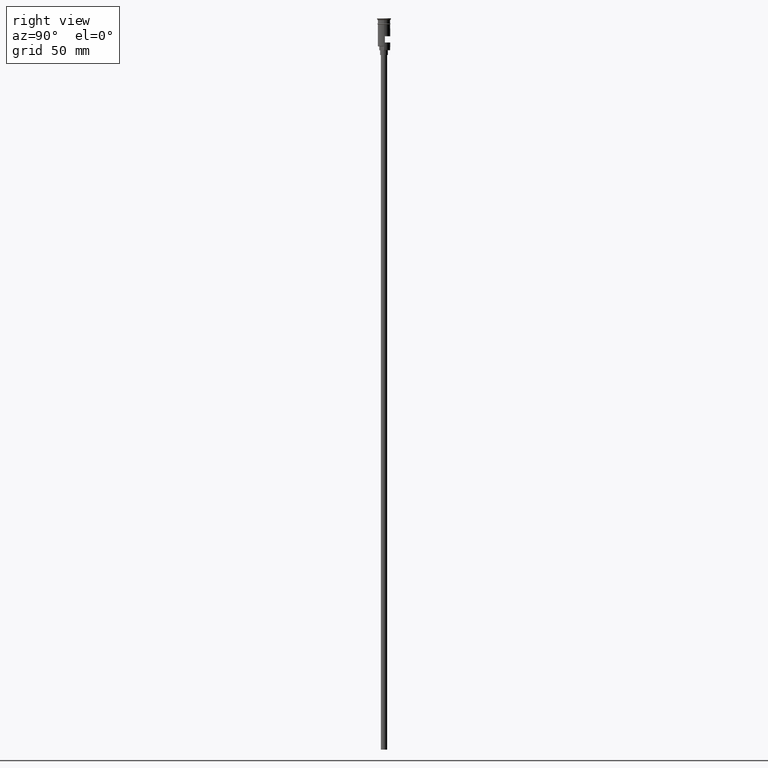
[diagram: clean part render]
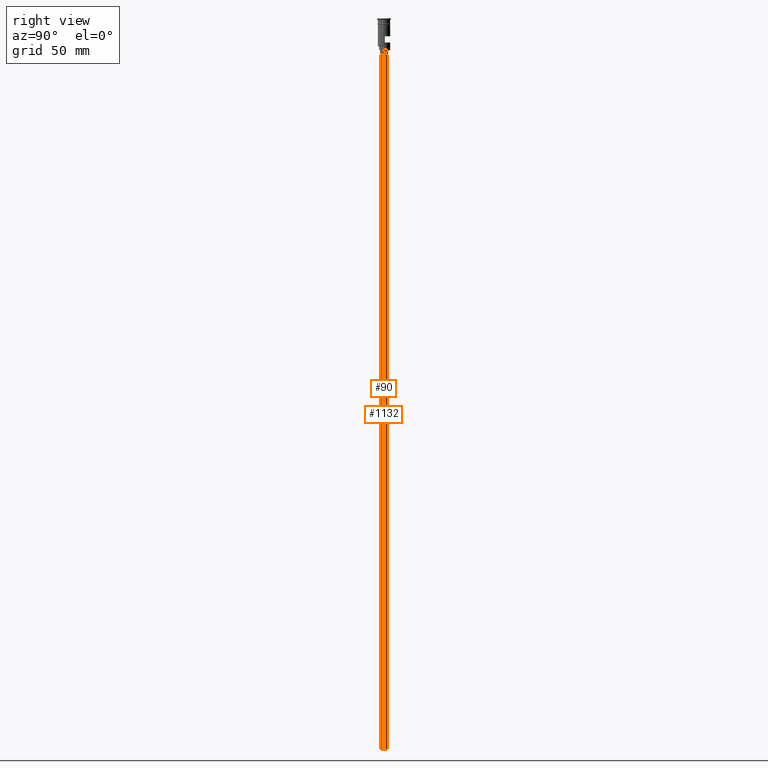
[diagram: same view with one multi-face feature highlighted, each face labeled with its STEP entity id]
A machine part, right view. The highlighted faces form ONE feature: a constant-radius fillet chain: 2 tangent blend faces with common blend radius 2 mm. The faces share edges in the B-rep.
Their STEP definitions:
[1] entity #1132 (Cylinder):
#51 = CYLINDRICAL_SURFACE ( 'NONE', #353, 2.000000000000000000 ) ;
#58 = FACE_OUTER_BOUND ( 'NONE', #765, .T. ) ;
#163 = CARTESIAN_POINT ( 'NONE',  ( -2.000000000000000000, 2.449293598294706414E-16, -470.5000000000000568 ) ) ;
#185 = VERTEX_POINT ( 'NONE', #838 ) ;
#198 = LINE ( 'NONE', #311, #1436 ) ;
#230 = VECTOR ( 'NONE', #646, 1000.000000000000000 ) ;
#258 = ORIENTED_EDGE ( 'NONE', *, *, #1176, .T. ) ;
#311 = CARTESIAN_POINT ( 'NONE',  ( 2.000000000000000000, 0.000000000000000000, -470.5000000000000568 ) ) ;
#353 = AXIS2_PLACEMENT_3D ( 'NONE', #1014, #1520, #1402 ) ;
#381 = AXIS2_PLACEMENT_3D ( 'NONE', #1517, #620, #995 ) ;
#387 = VERTEX_POINT ( 'NONE', #899 ) ;
#414 = VERTEX_POINT ( 'NONE', #1516 ) ;
#425 = CARTESIAN_POINT ( 'NONE',  ( -2.000000000000000000, 2.449293598294706414E-16, -470.5000000000000568 ) ) ;
#474 = CARTESIAN_POINT ( 'NONE',  ( 0.000000000000000000, 0.000000000000000000, -23.49999999999999645 ) ) ;
#547 = DIRECTION ( 'NONE',  ( -0.000000000000000000, -0.000000000000000000, 1.000000000000000000 ) ) ;
#620 = DIRECTION ( 'NONE',  ( 0.000000000000000000, 0.000000000000000000, -1.000000000000000000 ) ) ;
#622 = EDGE_CURVE ( 'NONE', #414, #797, #1389, .T. ) ;
#646 = DIRECTION ( 'NONE',  ( -0.000000000000000000, -0.000000000000000000, 1.000000000000000000 ) ) ;
#680 = AXIS2_PLACEMENT_3D ( 'NONE', #474, #1490, #842 ) ;
#765 = EDGE_LOOP ( 'NONE', ( #866, #1401, #1127, #258 ) ) ;
#797 = VERTEX_POINT ( 'NONE', #425 ) ;
#838 = CARTESIAN_POINT ( 'NONE',  ( -2.000000000000000000, 2.449293598294706414E-16, -23.49999999999999645 ) ) ;
#842 = DIRECTION ( 'NONE',  ( -1.000000000000000000, 0.000000000000000000, 0.000000000000000000 ) ) ;
#866 = ORIENTED_EDGE ( 'NONE', *, *, #1283, .F. ) ;
#899 = CARTESIAN_POINT ( 'NONE',  ( 2.000000000000000000, 0.000000000000000000, -23.49999999999999645 ) ) ;
#995 = DIRECTION ( 'NONE',  ( -1.000000000000000000, 0.000000000000000000, 0.000000000000000000 ) ) ;
#1014 = CARTESIAN_POINT ( 'NONE',  ( 0.000000000000000000, 0.000000000000000000, -470.5000000000000568 ) ) ;
#1127 = ORIENTED_EDGE ( 'NONE', *, *, #1474, .T. ) ;
#1132 = ADVANCED_FACE ( 'NONE', ( #58 ), #51, .T. ) ;
#1176 = EDGE_CURVE ( 'NONE', #387, #185, #1536, .T. ) ;
#1283 = EDGE_CURVE ( 'NONE', #797, #185, #1509, .T. ) ;
#1389 = CIRCLE ( 'NONE', #381, 2.000000000000000000 ) ;
#1401 = ORIENTED_EDGE ( 'NONE', *, *, #622, .F. ) ;
#1402 = DIRECTION ( 'NONE',  ( 1.000000000000000000, 0.000000000000000000, 0.000000000000000000 ) ) ;
#1436 = VECTOR ( 'NONE', #547, 1000.000000000000000 ) ;
#1474 = EDGE_CURVE ( 'NONE', #414, #387, #198, .T. ) ;
#1490 = DIRECTION ( 'NONE',  ( 0.000000000000000000, 0.000000000000000000, -1.000000000000000000 ) ) ;
#1509 = LINE ( 'NONE', #163, #230 ) ;
#1516 = CARTESIAN_POINT ( 'NONE',  ( 2.000000000000000000, 0.000000000000000000, -470.5000000000000568 ) ) ;
#1517 = CARTESIAN_POINT ( 'NONE',  ( 0.000000000000000000, 0.000000000000000000, -470.5000000000000568 ) ) ;
#1520 = DIRECTION ( 'NONE',  ( -0.000000000000000000, -0.000000000000000000, 1.000000000000000000 ) ) ;
#1536 = CIRCLE ( 'NONE', #680, 2.000000000000000000 ) ;
[2] entity #90 (Cylinder):
#90 = ADVANCED_FACE ( 'NONE', ( #971 ), #482, .T. ) ;
#128 = ORIENTED_EDGE ( 'NONE', *, *, #1185, .T. ) ;
#163 = CARTESIAN_POINT ( 'NONE',  ( -2.000000000000000000, 2.449293598294706414E-16, -470.5000000000000568 ) ) ;
#185 = VERTEX_POINT ( 'NONE', #838 ) ;
#198 = LINE ( 'NONE', #311, #1436 ) ;
#230 = VECTOR ( 'NONE', #646, 1000.000000000000000 ) ;
#298 = ORIENTED_EDGE ( 'NONE', *, *, #1474, .F. ) ;
#311 = CARTESIAN_POINT ( 'NONE',  ( 2.000000000000000000, 0.000000000000000000, -470.5000000000000568 ) ) ;
#365 = DIRECTION ( 'NONE',  ( -0.000000000000000000, -0.000000000000000000, 1.000000000000000000 ) ) ;
#367 = ORIENTED_EDGE ( 'NONE', *, *, #1283, .T. ) ;
#387 = VERTEX_POINT ( 'NONE', #899 ) ;
#414 = VERTEX_POINT ( 'NONE', #1516 ) ;
#420 = CIRCLE ( 'NONE', #980, 2.000000000000000000 ) ;
#425 = CARTESIAN_POINT ( 'NONE',  ( -2.000000000000000000, 2.449293598294706414E-16, -470.5000000000000568 ) ) ;
#460 = DIRECTION ( 'NONE',  ( 0.000000000000000000, 0.000000000000000000, -1.000000000000000000 ) ) ;
#482 = CYLINDRICAL_SURFACE ( 'NONE', #681, 2.000000000000000000 ) ;
#507 = CARTESIAN_POINT ( 'NONE',  ( 0.000000000000000000, 0.000000000000000000, -23.49999999999999645 ) ) ;
#547 = DIRECTION ( 'NONE',  ( -0.000000000000000000, -0.000000000000000000, 1.000000000000000000 ) ) ;
#555 = AXIS2_PLACEMENT_3D ( 'NONE', #507, #623, #1335 ) ;
#623 = DIRECTION ( 'NONE',  ( 0.000000000000000000, 0.000000000000000000, -1.000000000000000000 ) ) ;
#646 = DIRECTION ( 'NONE',  ( -0.000000000000000000, -0.000000000000000000, 1.000000000000000000 ) ) ;
#681 = AXIS2_PLACEMENT_3D ( 'NONE', #1471, #365, #846 ) ;
#797 = VERTEX_POINT ( 'NONE', #425 ) ;
#838 = CARTESIAN_POINT ( 'NONE',  ( -2.000000000000000000, 2.449293598294706414E-16, -23.49999999999999645 ) ) ;
#846 = DIRECTION ( 'NONE',  ( 1.000000000000000000, 0.000000000000000000, 0.000000000000000000 ) ) ;
#899 = CARTESIAN_POINT ( 'NONE',  ( 2.000000000000000000, 0.000000000000000000, -23.49999999999999645 ) ) ;
#971 = FACE_OUTER_BOUND ( 'NONE', #1318, .T. ) ;
#980 = AXIS2_PLACEMENT_3D ( 'NONE', #1161, #460, #1199 ) ;
#1032 = CIRCLE ( 'NONE', #555, 2.000000000000000000 ) ;
#1146 = EDGE_CURVE ( 'NONE', #797, #414, #420, .T. ) ;
#1161 = CARTESIAN_POINT ( 'NONE',  ( 0.000000000000000000, 0.000000000000000000, -470.5000000000000568 ) ) ;
#1185 = EDGE_CURVE ( 'NONE', #185, #387, #1032, .T. ) ;
#1199 = DIRECTION ( 'NONE',  ( -1.000000000000000000, 0.000000000000000000, 0.000000000000000000 ) ) ;
#1283 = EDGE_CURVE ( 'NONE', #797, #185, #1509, .T. ) ;
#1318 = EDGE_LOOP ( 'NONE', ( #1440, #367, #128, #298 ) ) ;
#1335 = DIRECTION ( 'NONE',  ( -1.000000000000000000, 0.000000000000000000, 0.000000000000000000 ) ) ;
#1436 = VECTOR ( 'NONE', #547, 1000.000000000000000 ) ;
#1440 = ORIENTED_EDGE ( 'NONE', *, *, #1146, .F. ) ;
#1471 = CARTESIAN_POINT ( 'NONE',  ( 0.000000000000000000, 0.000000000000000000, -470.5000000000000568 ) ) ;
#1474 = EDGE_CURVE ( 'NONE', #414, #387, #198, .T. ) ;
#1509 = LINE ( 'NONE', #163, #230 ) ;
#1516 = CARTESIAN_POINT ( 'NONE',  ( 2.000000000000000000, 0.000000000000000000, -470.5000000000000568 ) ) ;